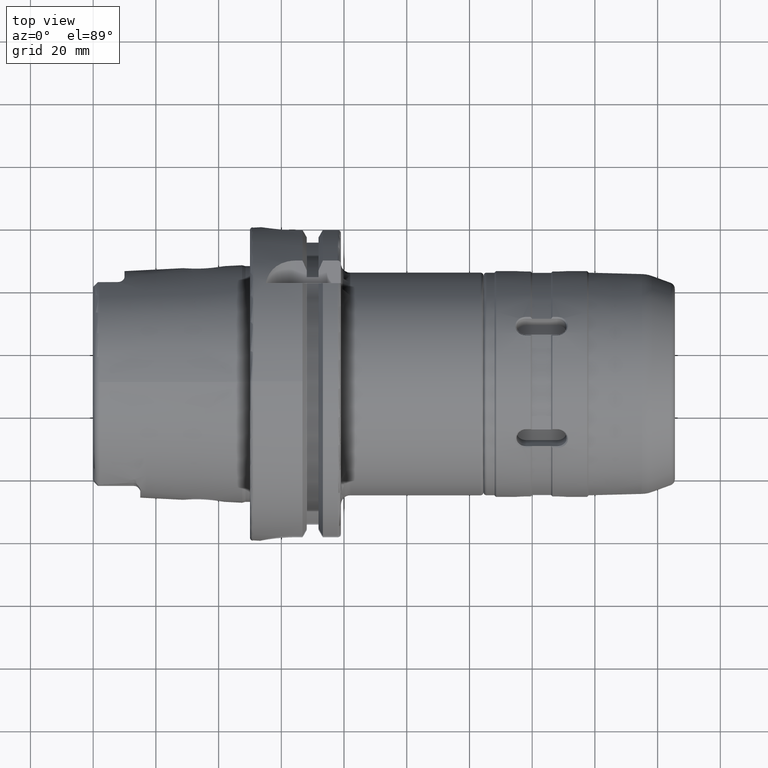
[diagram: clean part render]
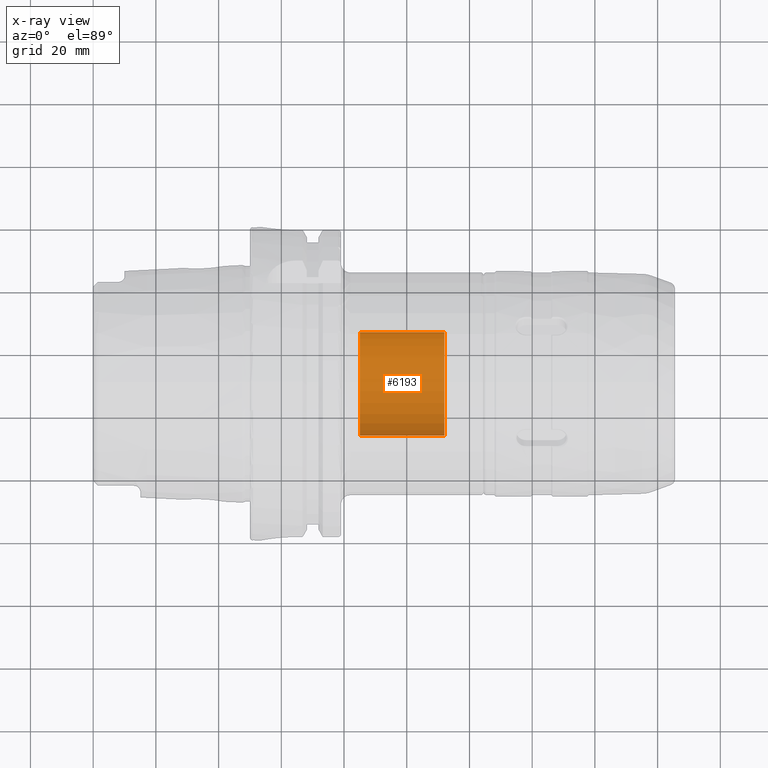
[diagram: x-ray — body ghosted, one internal face saturated and labeled with its STEP entity id]
A machine part, top view, then the same camera in x-ray: the body is ghosted and one INTERNAL B-rep face — a face not visible from any outside direction — is saturated and labeled: STEP entity #6193.
In plain terms, the highlighted cylindrical surface (partial cylindrical patch) has radius 16.4973 mm, axis along (-1, 0, 0).
Its self-contained STEP definition (entity closure, byte-faithful):
#740=CARTESIAN_POINT('',(1.378E0,0.E0,0.E0));
#741=DIRECTION('',(-1.E0,0.E0,0.E0));
#742=DIRECTION('',(0.E0,1.E0,0.E0));
#743=AXIS2_PLACEMENT_3D('',#740,#741,#742);
#755=DIRECTION('',(-1.E0,0.E0,0.E0));
#756=VECTOR('',#755,1.063E0);
#757=CARTESIAN_POINT('',(2.441E0,-6.495E-1,0.E0));
#758=LINE('',#757,#756);
#774=CARTESIAN_POINT('',(2.441E0,0.E0,0.E0));
#775=DIRECTION('',(-1.E0,0.E0,0.E0));
#776=DIRECTION('',(0.E0,1.E0,0.E0));
#777=AXIS2_PLACEMENT_3D('',#774,#775,#776);
#2612=DIRECTION('',(-1.E0,0.E0,0.E0));
#2613=VECTOR('',#2612,1.063E0);
#2614=CARTESIAN_POINT('',(2.441E0,6.495E-1,0.E0));
#2615=LINE('',#2614,#2613);
#3135=CARTESIAN_POINT('',(1.378E0,-6.495E-1,0.E0));
#3136=CARTESIAN_POINT('',(1.378E0,6.495E-1,0.E0));
#3137=VERTEX_POINT('',#3135);
#3138=VERTEX_POINT('',#3136);
#3139=CARTESIAN_POINT('',(2.441E0,-6.495E-1,0.E0));
#3140=CARTESIAN_POINT('',(2.441E0,6.495E-1,0.E0));
#3141=VERTEX_POINT('',#3139);
#3142=VERTEX_POINT('',#3140);
#6182=CARTESIAN_POINT('',(2.441E0,0.E0,0.E0));
#6183=DIRECTION('',(-1.E0,0.E0,0.E0));
#6184=DIRECTION('',(0.E0,-1.E0,0.E0));
#6185=AXIS2_PLACEMENT_3D('',#6182,#6183,#6184);
#6186=CYLINDRICAL_SURFACE('',#6185,6.495E-1);
#6187=ORIENTED_EDGE('',*,*,#3945,.T.);
#6188=ORIENTED_EDGE('',*,*,#3928,.T.);
#6189=ORIENTED_EDGE('',*,*,#3909,.F.);
#6190=ORIENTED_EDGE('',*,*,#3925,.F.);
#6191=EDGE_LOOP('',(#6187,#6188,#6189,#6190));
#6192=FACE_OUTER_BOUND('',#6191,.F.);
#6193=ADVANCED_FACE('',(#6192),#6186,.F.);
#744=CIRCLE('',#743,6.495E-1);
#778=CIRCLE('',#777,6.495E-1);
#3909=EDGE_CURVE('',#3138,#3137,#744,.T.);
#3925=EDGE_CURVE('',#3142,#3138,#2615,.T.);
#3928=EDGE_CURVE('',#3141,#3137,#758,.T.);
#3945=EDGE_CURVE('',#3142,#3141,#778,.T.);